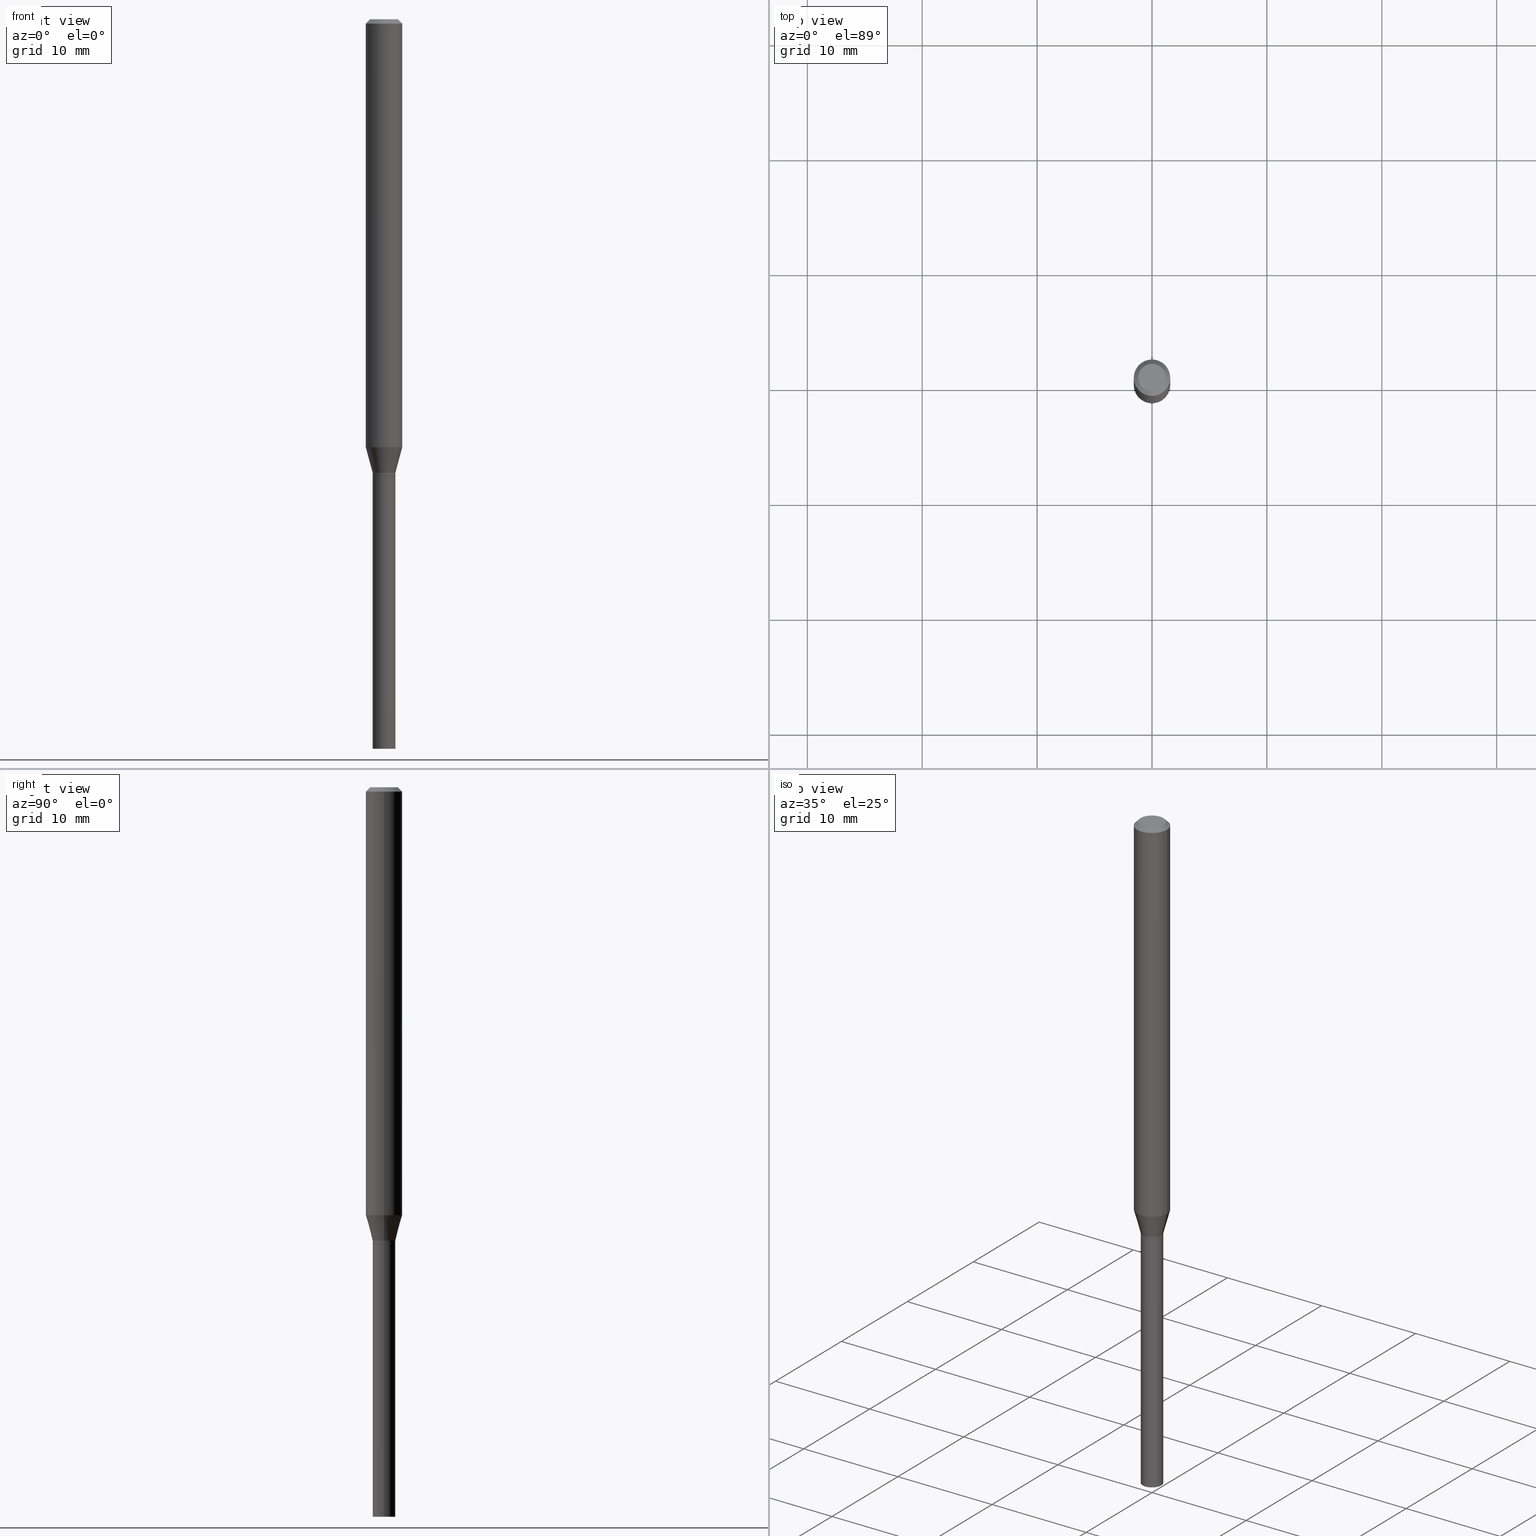
[diagram: canonical four-view strip — front | top / right | iso, engineering-drawing reading convention]
A machine part, canonical four-view strip (front | top / right | iso — engineering-drawing reading convention). The complete STEP part file that produces these views, byte-faithful:
ISO-10303-21;
HEADER;
FILE_DESCRIPTION (( 'STEP AP203' ),
    '1' );
FILE_NAME ('00655.STEP',
    '2024-03-19T22:21:24',
    ( '' ),
    ( '' ),
    'SwSTEP 2.0',
    'SolidWorks 2023',
    '' );
FILE_SCHEMA (( 'CONFIG_CONTROL_DESIGN' ));
ENDSEC;

DATA;
#1 = AXIS2_PLACEMENT_3D ( 'NONE', #177, #400, #214 ) ;
#2 = DATE_TIME_ROLE ( 'creation_date' ) ;
#3 = LINE ( 'NONE', #431, #44 ) ;
#4 = VERTEX_POINT ( 'NONE', #256 ) ;
#5 = CARTESIAN_POINT ( 'NONE',  ( -0.03899999999999963912, -5.148650333615810710E-15, -1.553999999999999826 ) ) ;
#6 = ORIENTED_EDGE ( 'NONE', *, *, #369, .T. ) ;
#7 = AXIS2_PLACEMENT_3D ( 'NONE', #466, #168, #139 ) ;
#8 = DIRECTION ( 'NONE',  ( 1.000000000000000000, -6.982962677686266711E-15, 4.876176775795935793E-29 ) ) ;
#9 = VERTEX_POINT ( 'NONE', #123 ) ;
#10 = CARTESIAN_POINT ( 'NONE',  ( 3.823490478470460975E-29, -5.458931073281258596E-15, -1.563500000000000112 ) ) ;
#11 = ORIENTED_EDGE ( 'NONE', *, *, #413, .T. ) ;
#12 = DIRECTION ( 'NONE',  ( -2.445468806185136597E-29, 3.491481338843145583E-15, 1.000000000000000000 ) ) ;
#13 = DIRECTION ( 'NONE',  ( -2.445468806185136597E-29, 3.491481338843145583E-15, 1.000000000000000000 ) ) ;
#14 = CC_DESIGN_APPROVAL ( #157, ( #235 ) ) ;
#15 = ORIENTED_EDGE ( 'NONE', *, *, #308, .F. ) ;
#16 = ORIENTED_EDGE ( 'NONE', *, *, #321, .F. ) ;
#17 = CARTESIAN_POINT ( 'NONE',  ( 0.000000000000000000, 0.000000000000000000, 0.000000000000000000 ) ) ;
#18 = ORIENTED_EDGE ( 'NONE', *, *, #96, .T. ) ;
#19 = CIRCLE ( 'NONE', #355, 0.03899999999999999994 ) ;
#20 = CIRCLE ( 'NONE', #438, 0.03899999999999999994 ) ;
#21 = DIRECTION ( 'NONE',  ( -2.445468806185136597E-29, 3.491481338843145583E-15, 1.000000000000000000 ) ) ;
#22 = APPLICATION_PROTOCOL_DEFINITION ( 'international standard', 'config_control_design', 1994, #347 ) ;
#23 = EDGE_CURVE ( 'NONE', #78, #51, #402, .T. ) ;
#24 = CARTESIAN_POINT ( 'NONE',  ( 0.03899999999999999994, -2.723355444297643682E-16, 1.901708942560414931E-30 ) ) ;
#25 =( NAMED_UNIT ( * ) SI_UNIT ( $, .STERADIAN. ) SOLID_ANGLE_UNIT ( ) );
#26 = FACE_OUTER_BOUND ( 'NONE', #118, .T. ) ;
#27 = CARTESIAN_POINT ( 'NONE',  ( 3.824713212873553776E-29, -5.460676813950680100E-15, -1.564000000000000057 ) ) ;
#28 = AXIS2_PLACEMENT_3D ( 'NONE', #63, #463, #202 ) ;
#29 = CARTESIAN_POINT ( 'NONE',  ( -0.06250000000000000000, 3.840629472727444916E-16, -0.01499999999999999944 ) ) ;
#30 = AXIS2_PLACEMENT_3D ( 'NONE', #10, #151, #287 ) ;
#31 = PRODUCT_DEFINITION_SHAPE ( 'NONE', 'NONE',  #235 ) ;
#32 = ADVANCED_FACE ( 'NONE', ( #183 ), #282, .T. ) ;
#33 = PERSON_AND_ORGANIZATION ( #237, #290 ) ;
#34 = PERSON_AND_ORGANIZATION_ROLE ( 'creator' ) ;
#35 = ORIENTED_EDGE ( 'NONE', *, *, #188, .T. ) ;
#36 = EDGE_CURVE ( 'NONE', #75, #220, #19, .T. ) ;
#37 = DIRECTION ( 'NONE',  ( -2.445468806185136597E-29, 3.491481338843145583E-15, 1.000000000000000000 ) ) ;
#38 = VECTOR ( 'NONE', #365, 39.37007874015748143 ) ;
#39 = CIRCLE ( 'NONE', #165, 0.06250000000000000000 ) ;
#40 = ORIENTED_EDGE ( 'NONE', *, *, #250, .F. ) ;
#41 = CARTESIAN_POINT ( 'NONE',  ( 0.000000000000000000, 0.000000000000000000, 0.000000000000000000 ) ) ;
#42 = EDGE_CURVE ( 'NONE', #155, #353, #424, .T. ) ;
#43 = AXIS2_PLACEMENT_3D ( 'NONE', #192, #265, #377 ) ;
#44 = VECTOR ( 'NONE', #110, 39.37007874015748854 ) ;
#45 = CC_DESIGN_SECURITY_CLASSIFICATION ( #385, ( #71 ) ) ;
#46 = CARTESIAN_POINT ( 'NONE',  ( -0.03899999999999999994, -6.817578413582832808E-15, -2.500000000000000000 ) ) ;
#47 = ORIENTED_EDGE ( 'NONE', *, *, #169, .F. ) ;
#48 = CARTESIAN_POINT ( 'NONE',  ( 0.03849999999999999256, -5.729520877041600327E-15, -1.563999999999999835 ) ) ;
#49 = ORIENTED_EDGE ( 'NONE', *, *, #264, .F. ) ;
#50 = ADVANCED_FACE ( 'NONE', ( #340 ), #234, .T. ) ;
#51 = VERTEX_POINT ( 'NONE', #130 ) ;
#52 = VECTOR ( 'NONE', #257, 39.37007874015748854 ) ;
#53 = ORIENTED_EDGE ( 'NONE', *, *, #386, .F. ) ;
#54 = ORIENTED_EDGE ( 'NONE', *, *, #23, .T. ) ;
#55 = CARTESIAN_POINT ( 'NONE',  ( 0.03849999999999999256, -5.729520877041600327E-15, -1.563999999999999835 ) ) ;
#56 = EDGE_CURVE ( 'NONE', #69, #9, #336, .T. ) ;
#57 = CLOSED_SHELL ( 'NONE', ( #284, #375, #222, #406, #133, #291, #272, #219, #446, #208, #32, #174 ) ) ;
#58 = DIRECTION ( 'NONE',  ( -2.445468806185136877E-29, 3.491481338843145188E-15, 1.000000000000000000 ) ) ;
#59 = CARTESIAN_POINT ( 'NONE',  ( 0.000000000000000000, 0.000000000000000000, 0.000000000000000000 ) ) ;
#60 = EDGE_CURVE ( 'NONE', #78, #248, #436, .T. ) ;
#61 = FACE_OUTER_BOUND ( 'NONE', #246, .T. ) ;
#62 = DIRECTION ( 'NONE',  ( -2.445468806185136597E-29, 3.491481338843145583E-15, 1.000000000000000000 ) ) ;
#63 = CARTESIAN_POINT ( 'NONE',  ( 3.824713212873553776E-29, -5.460676813950680100E-15, -1.564000000000000057 ) ) ;
#64 = LOCAL_TIME ( 18, 21, 24.00000000000000000, #310 ) ;
#65 = LINE ( 'NONE', #29, #230 ) ;
#66 = CALENDAR_DATE ( 2024, 19, 3 ) ;
#67 = EDGE_LOOP ( 'NONE', ( #405, #6, #279, #295 ) ) ;
#68 = DIRECTION ( 'NONE',  ( 2.445468806185136597E-29, -3.491481338843145583E-15, -1.000000000000000000 ) ) ;
#69 = VERTEX_POINT ( 'NONE', #55 ) ;
#70 = CARTESIAN_POINT ( 'NONE',  ( -0.06250000000000000000, 4.440892098500626162E-16, -3.074334431409316114E-30 ) ) ;
#71 = PRODUCT_DEFINITION_FORMATION_WITH_SPECIFIED_SOURCE ( 'ANY', '', #166, .NOT_KNOWN. ) ;
#72 = DATE_AND_TIME ( #66, #64 ) ;
#73 = VERTEX_POINT ( 'NONE', #198 ) ;
#74 = DIRECTION ( 'NONE',  ( -2.445468806185136877E-29, 3.491481338843145188E-15, 1.000000000000000000 ) ) ;
#75 = VERTEX_POINT ( 'NONE', #236 ) ;
#76 = LINE ( 'NONE', #5, #244 ) ;
#77 = CIRCLE ( 'NONE', #120, 0.06250000000000000000 ) ;
#78 = VERTEX_POINT ( 'NONE', #338 ) ;
#79 = AXIS2_PLACEMENT_3D ( 'NONE', #454, #371, #414 ) ;
#80 = DIRECTION ( 'NONE',  ( -2.445468806185136597E-29, 3.491481338843145583E-15, 1.000000000000000000 ) ) ;
#81 = CARTESIAN_POINT ( 'NONE',  ( 0.06250000000000000000, -4.811533449433679005E-16, -0.01499999999999999944 ) ) ;
#82 = CC_DESIGN_PERSON_AND_ORGANIZATION_ASSIGNMENT ( #33, #390, ( #385 ) ) ;
#83 = PLANE ( 'NONE',  #79 ) ;
#84 = ORIENTED_EDGE ( 'NONE', *, *, #315, .F. ) ;
#85 = EDGE_LOOP ( 'NONE', ( #404, #146 ) ) ;
#86 = CIRCLE ( 'NONE', #185, 0.03899999999999963912 ) ;
#87 = ORIENTED_EDGE ( 'NONE', *, *, #358, .T. ) ;
#88 = PERSON_AND_ORGANIZATION ( #237, #290 ) ;
#89 = EDGE_CURVE ( 'NONE', #220, #75, #392, .T. ) ;
#90 = FACE_OUTER_BOUND ( 'NONE', #189, .T. ) ;
#91 = LINE ( 'NONE', #164, #104 ) ;
#92 = AXIS2_PLACEMENT_3D ( 'NONE', #17, #156, #296 ) ;
#93 = DIRECTION ( 'NONE',  ( 2.438088387897960049E-29, -3.491481338843145188E-15, -1.000000000000000000 ) ) ;
#94 = DESIGN_CONTEXT ( 'detailed design', #347, 'design' ) ;
#95 = DIRECTION ( 'NONE',  ( -2.445468806185136597E-29, 3.491481338843145583E-15, 1.000000000000000000 ) ) ;
#96 = EDGE_CURVE ( 'NONE', #124, #155, #91, .T. ) ;
#97 = CARTESIAN_POINT ( 'NONE',  ( 6.113672015462842613E-29, -8.728703347107864943E-15, -2.500000000000000000 ) ) ;
#98 = CARTESIAN_POINT ( 'NONE',  ( 0.000000000000000000, 0.000000000000000000, 0.000000000000000000 ) ) ;
#99 = CALENDAR_DATE ( 2024, 19, 3 ) ;
#100 = FACE_OUTER_BOUND ( 'NONE', #447, .T. ) ;
#101 = DIRECTION ( 'NONE',  ( -2.445468806185136597E-29, 3.491481338843145583E-15, 1.000000000000000000 ) ) ;
#102 = APPROVAL_STATUS ( 'not_yet_approved' ) ;
#103 = VECTOR ( 'NONE', #167, 39.37007874015748143 ) ;
#104 = VECTOR ( 'NONE', #58, 39.37007874015748143 ) ;
#105 = AXIS2_PLACEMENT_3D ( 'NONE', #233, #462, #239 ) ;
#106 = ADVANCED_BREP_SHAPE_REPRESENTATION ( '00655', ( #122, #441, #92 ), #373 ) ;
#107 = CARTESIAN_POINT ( 'NONE',  ( 3.668203209277705088E-31, -5.237222008264718399E-17, -0.01499999999999999944 ) ) ;
#108 = EDGE_CURVE ( 'NONE', #73, #353, #199, .T. ) ;
#109 = SHAPE_DEFINITION_REPRESENTATION ( #31, #106 ) ;
#110 = DIRECTION ( 'NONE',  ( -0.7071067811869518049, 7.493145998871813553E-15, 0.7071067811861430075 ) ) ;
#111 = SECURITY_CLASSIFICATION_LEVEL ( 'unclassified' ) ;
#112 = DIRECTION ( 'NONE',  ( -2.445468806185136597E-29, 3.491481338843145583E-15, 1.000000000000000000 ) ) ;
#113 = AXIS2_PLACEMENT_3D ( 'NONE', #318, #12, #435 ) ;
#114 = EDGE_CURVE ( 'NONE', #4, #220, #229, .T. ) ;
#115 = CARTESIAN_POINT ( 'NONE',  ( 3.585783099736017642E-29, -5.119547935431576050E-15, -1.466296806022130417 ) ) ;
#116 = ORIENTED_EDGE ( 'NONE', *, *, #23, .F. ) ;
#117 = DIRECTION ( 'NONE',  ( -2.445468806185136597E-29, 3.491481338843145583E-15, 1.000000000000000000 ) ) ;
#118 = EDGE_LOOP ( 'NONE', ( #288, #18, #40, #224 ) ) ;
#119 = EDGE_CURVE ( 'NONE', #353, #286, #158, .T. ) ;
#120 = AXIS2_PLACEMENT_3D ( 'NONE', #138, #21, #303 ) ;
#121 = ORIENTED_EDGE ( 'NONE', *, *, #302, .F. ) ;
#122 = MANIFOLD_SOLID_BREP ( 'Body-Move/Copy2[1]', #298 ) ;
#123 = CARTESIAN_POINT ( 'NONE',  ( -0.03849999999999999256, -5.184468633508929690E-15, -1.563999999999999835 ) ) ;
#124 = VERTEX_POINT ( 'NONE', #304 ) ;
#125 = ORIENTED_EDGE ( 'NONE', *, *, #259, .T. ) ;
#126 = LINE ( 'NONE', #341, #337 ) ;
#127 = CIRCLE ( 'NONE', #448, 0.04749999999999999362 ) ;
#128 = CC_DESIGN_PERSON_AND_ORGANIZATION_ASSIGNMENT ( #313, #143, ( #235 ) ) ;
#129 = DIRECTION ( 'NONE',  ( 1.000000000000000000, -6.982962677686265922E-15, 4.876176775795935793E-29 ) ) ;
#130 = CARTESIAN_POINT ( 'NONE',  ( 0.06250000000000000000, -4.888073874380388472E-16, -0.01499999999999999944 ) ) ;
#131 = APPROVAL_ROLE ( '' ) ;
#132 = FACE_OUTER_BOUND ( 'NONE', #67, .T. ) ;
#133 = ADVANCED_FACE ( 'NONE', ( #459 ), #159, .T. ) ;
#134 = AXIS2_PLACEMENT_3D ( 'NONE', #328, #13, #292 ) ;
#135 = CONICAL_SURFACE ( 'NONE', #171, 0.06250000000000000000, 0.7853981633974427279 ) ;
#136 = DIRECTION ( 'NONE',  ( 1.000000000000000000, -6.982962677686266711E-15, 4.876176775795936353E-29 ) ) ;
#137 = PERSON_AND_ORGANIZATION ( #237, #290 ) ;
#138 = CARTESIAN_POINT ( 'NONE',  ( 3.585783099736017642E-29, -5.119547935431576050E-15, -1.466296806022130417 ) ) ;
#139 = DIRECTION ( 'NONE',  ( 1.000000000000000000, -6.982962677686266711E-15, 4.876176775795936353E-29 ) ) ;
#140 = VECTOR ( 'NONE', #350, 39.37007874015748143 ) ;
#141 = ADVANCED_FACE ( 'NONE', ( #90 ), #412, .T. ) ;
#142 = AXIS2_PLACEMENT_3D ( 'NONE', #457, #95, #232 ) ;
#143 = PERSON_AND_ORGANIZATION_ROLE ( 'creator' ) ;
#144 = ORIENTED_EDGE ( 'NONE', *, *, #403, .T. ) ;
#145 = DATE_AND_TIME ( #334, #209 ) ;
#146 = ORIENTED_EDGE ( 'NONE', *, *, #60, .T. ) ;
#147 = DIRECTION ( 'NONE',  ( 1.000000000000000000, -6.982962677686266711E-15, 0.000000000000000000 ) ) ;
#148 = ORIENTED_EDGE ( 'NONE', *, *, #36, .F. ) ;
#149 = DIRECTION ( 'NONE',  ( -2.445468806185136597E-29, 3.491481338843145583E-15, 1.000000000000000000 ) ) ;
#150 = ORIENTED_EDGE ( 'NONE', *, *, #452, .T. ) ;
#151 = DIRECTION ( 'NONE',  ( -2.445468806185136597E-29, 3.491481338843145583E-15, 1.000000000000000000 ) ) ;
#152 = EDGE_LOOP ( 'NONE', ( #116, #16, #396, #35 ) ) ;
#153 = ORIENTED_EDGE ( 'NONE', *, *, #89, .T. ) ;
#154 = EDGE_LOOP ( 'NONE', ( #121, #333, #258, #148 ) ) ;
#155 = VERTEX_POINT ( 'NONE', #417 ) ;
#156 = DIRECTION ( 'NONE',  ( 0.000000000000000000, 0.000000000000000000, 1.000000000000000000 ) ) ;
#157 = APPROVAL ( #458, 'UNSPECIFIED' ) ;
#158 = LINE ( 'NONE', #307, #297 ) ;
#159 = CONICAL_SURFACE ( 'NONE', #275, 0.03899999999999963912, 0.2617993877991506846 ) ;
#160 = VECTOR ( 'NONE', #325, 39.37007874015748143 ) ;
#161 = PERSON_AND_ORGANIZATION ( #237, #290 ) ;
#162 = CC_DESIGN_PERSON_AND_ORGANIZATION_ASSIGNMENT ( #432, #352, ( #71 ) ) ;
#163 = CARTESIAN_POINT ( 'NONE',  ( 0.03899999999999990974, -2.723355444297637765E-16, 1.901708942560410727E-30 ) ) ;
#164 = CARTESIAN_POINT ( 'NONE',  ( -0.03899999999999990974, 2.771116669464384311E-16, -1.918384685199408874E-30 ) ) ;
#165 = AXIS2_PLACEMENT_3D ( 'NONE', #253, #440, #147 ) ;
#166 = PRODUCT ( '00655', '00655', '', ( #191 ) ) ;
#167 = DIRECTION ( 'NONE',  ( -2.445468806185136877E-29, 3.491481338843145188E-15, 1.000000000000000000 ) ) ;
#168 = DIRECTION ( 'NONE',  ( -2.445468806185136597E-29, 3.491481338843145583E-15, 1.000000000000000000 ) ) ;
#169 = EDGE_CURVE ( 'NONE', #286, #430, #77, .T. ) ;
#170 = COORDINATED_UNIVERSAL_TIME_OFFSET ( 5, 0, .BEHIND. ) ;
#171 = AXIS2_PLACEMENT_3D ( 'NONE', #388, #349, #312 ) ;
#172 = DIRECTION ( 'NONE',  ( 1.000000000000000000, -6.982962677686283277E-15, 0.000000000000000000 ) ) ;
#173 = COORDINATED_UNIVERSAL_TIME_OFFSET ( 5, 0, .BEHIND. ) ;
#174 = ADVANCED_FACE ( 'NONE', ( #132 ), #273, .T. ) ;
#175 = APPROVAL_ROLE ( '' ) ;
#176 = ORIENTED_EDGE ( 'NONE', *, *, #119, .T. ) ;
#177 = CARTESIAN_POINT ( 'NONE',  ( 3.824713212873553216E-29, -5.460676813950679311E-15, -1.563999999999999835 ) ) ;
#178 = AXIS2_PLACEMENT_3D ( 'NONE', #41, #323, #8 ) ;
#179 = DIRECTION ( 'NONE',  ( 1.000000000000000000, -6.982962677686262766E-15, 0.000000000000000000 ) ) ;
#180 = ORIENTED_EDGE ( 'NONE', *, *, #203, .F. ) ;
#181 = CC_DESIGN_DATE_AND_TIME_ASSIGNMENT ( #211, #2, ( #235 ) ) ;
#182 = CYLINDRICAL_SURFACE ( 'NONE', #178, 0.06250000000000000000 ) ;
#183 = FACE_OUTER_BOUND ( 'NONE', #320, .T. ) ;
#184 = ORIENTED_EDGE ( 'NONE', *, *, #169, .T. ) ;
#185 = AXIS2_PLACEMENT_3D ( 'NONE', #418, #37, #342 ) ;
#186 = LOCAL_TIME ( 18, 21, 24.00000000000000000, #173 ) ;
#187 = DIMENSIONAL_EXPONENTS ( 1.000000000000000000, 0.000000000000000000, 0.000000000000000000, 0.000000000000000000, 0.000000000000000000, 0.000000000000000000, 0.000000000000000000 ) ;
#188 = EDGE_CURVE ( 'NONE', #215, #51, #330, .T. ) ;
#189 = EDGE_LOOP ( 'NONE', ( #125, #366, #207, #361 ) ) ;
#190 = ORIENTED_EDGE ( 'NONE', *, *, #56, .T. ) ;
#191 = MECHANICAL_CONTEXT ( 'NONE', #319, 'mechanical' ) ;
#192 = CARTESIAN_POINT ( 'NONE',  ( 3.800258524811702231E-29, -5.425762000562247662E-15, -1.553999999999999826 ) ) ;
#193 =( NAMED_UNIT ( * ) PLANE_ANGLE_UNIT ( ) SI_UNIT ( $, .RADIAN. ) );
#194 = CONICAL_SURFACE ( 'NONE', #113, 0.03899999999999963912, 0.2617993877991506846 ) ;
#195 = ADVANCED_FACE ( 'NONE', ( #343 ), #434, .F. ) ;
#196 = DIRECTION ( 'NONE',  ( 0.2588190451025219607, 1.565188264969617432E-15, 0.9659258262890679791 ) ) ;
#197 = DIRECTION ( 'NONE',  ( 1.000000000000000000, -6.982962677686266711E-15, 4.876176775795935793E-29 ) ) ;
#198 = CARTESIAN_POINT ( 'NONE',  ( 0.03900000000000019423, -5.731266617711024986E-15, -1.563500000000000112 ) ) ;
#199 = LINE ( 'NONE', #163, #140 ) ;
#200 = AXIS2_PLACEMENT_3D ( 'NONE', #443, #117, #249 ) ;
#201 = CYLINDRICAL_SURFACE ( 'NONE', #362, 0.06250000000000000000 ) ;
#202 = DIRECTION ( 'NONE',  ( 1.000000000000000000, -6.982962677686258033E-15, 0.000000000000000000 ) ) ;
#203 = EDGE_CURVE ( 'NONE', #248, #215, #65, .T. ) ;
#204 = DATE_AND_TIME ( #99, #394 ) ;
#205 = EDGE_LOOP ( 'NONE', ( #262, #428 ) ) ;
#206 = PERSON_AND_ORGANIZATION ( #237, #290 ) ;
#207 = ORIENTED_EDGE ( 'NONE', *, *, #89, .F. ) ;
#208 = ADVANCED_FACE ( 'NONE', ( #316 ), #306, .F. ) ;
#209 = LOCAL_TIME ( 18, 21, 24.00000000000000000, #305 ) ;
#210 = FACE_OUTER_BOUND ( 'NONE', #444, .T. ) ;
#211 = DATE_AND_TIME ( #387, #268 ) ;
#212 = DIRECTION ( 'NONE',  ( 1.000000000000000000, -6.982962677686267499E-15, 4.852736867747366768E-29 ) ) ;
#213 = ORIENTED_EDGE ( 'NONE', *, *, #369, .F. ) ;
#214 = DIRECTION ( 'NONE',  ( 1.000000000000000000, -6.982962677686271444E-15, 0.000000000000000000 ) ) ;
#215 = VERTEX_POINT ( 'NONE', #277 ) ;
#216 = CARTESIAN_POINT ( 'NONE',  ( -4.193002486944321875E-45, 5.986496290552430293E-31, 1.714600683655944577E-16 ) ) ;
#217 = AXIS2_PLACEMENT_3D ( 'NONE', #445, #149, #285 ) ;
#218 = EDGE_LOOP ( 'NONE', ( #153, #450 ) ) ;
#219 = ADVANCED_FACE ( 'NONE', ( #429 ), #135, .T. ) ;
#220 = VERTEX_POINT ( 'NONE', #421 ) ;
#221 = ORIENTED_EDGE ( 'NONE', *, *, #119, .F. ) ;
#222 = ADVANCED_FACE ( 'NONE', ( #100 ), #393, .T. ) ;
#223 = AXIS2_PLACEMENT_3D ( 'NONE', #419, #101, #346 ) ;
#224 = ORIENTED_EDGE ( 'NONE', *, *, #108, .F. ) ;
#225 = CIRCLE ( 'NONE', #30, 0.03900000000000019423 ) ;
#226 = ORIENTED_EDGE ( 'NONE', *, *, #308, .T. ) ;
#227 = PERSON_AND_ORGANIZATION_ROLE ( 'design_owner' ) ;
#228 = CARTESIAN_POINT ( 'NONE',  ( 3.824713212873553216E-29, -5.460676813950679311E-15, -1.563999999999999835 ) ) ;
#229 = LINE ( 'NONE', #24, #103 ) ;
#230 = VECTOR ( 'NONE', #269, 39.37007874015748143 ) ;
#231 = CARTESIAN_POINT ( 'NONE',  ( 3.316907271900976096E-16, 0.04749999999999999362, -8.011532941225217989E-17 ) ) ;
#232 = DIRECTION ( 'NONE',  ( 1.000000000000000000, -6.982962677686266711E-15, 0.000000000000000000 ) ) ;
#233 = CARTESIAN_POINT ( 'NONE',  ( 3.824713212873553776E-29, -5.460676813950680100E-15, -1.564000000000000057 ) ) ;
#234 = CYLINDRICAL_SURFACE ( 'NONE', #415, 0.03899999999999999994 ) ;
#235 = PRODUCT_DEFINITION ( 'UNKNOWN', '', #71, #94 ) ;
#236 = CARTESIAN_POINT ( 'NONE',  ( -0.03899999999999999994, -6.817578413582832808E-15, -1.564000000000000057 ) ) ;
#237 = PERSON ( 'UNSPECIFIED', 'UNSPECIFIED', 'UNSPECIFIED', ('UNSPECIFIED'), ('UNSPECIFIED'), ('UNSPECIFIED') ) ;
#238 = CIRCLE ( 'NONE', #322, 0.03899999999999999994 ) ;
#239 = DIRECTION ( 'NONE',  ( 1.000000000000000000, -6.982962677686265922E-15, 4.876176775795935793E-29 ) ) ;
#240 = CARTESIAN_POINT ( 'NONE',  ( -0.04749999999999999362, 3.578768372314213957E-16, 1.714600683655920665E-16 ) ) ;
#241 = EDGE_LOOP ( 'NONE', ( #184, #144, #326, #331 ) ) ;
#242 = CC_DESIGN_PERSON_AND_ORGANIZATION_ASSIGNMENT ( #88, #227, ( #166 ) ) ;
#243 = CARTESIAN_POINT ( 'NONE',  ( 0.000000000000000000, 0.000000000000000000, 0.000000000000000000 ) ) ;
#244 = VECTOR ( 'NONE', #245, 39.37007874015748143 ) ;
#245 = DIRECTION ( 'NONE',  ( -0.2588190451025219607, 5.211531920934553408E-15, 0.9659258262890679791 ) ) ;
#246 = EDGE_LOOP ( 'NONE', ( #453, #260, #150, #370 ) ) ;
#247 = DIRECTION ( 'NONE',  ( -2.445468806185136597E-29, 3.491481338843145583E-15, 1.000000000000000000 ) ) ;
#248 = VERTEX_POINT ( 'NONE', #240 ) ;
#249 = DIRECTION ( 'NONE',  ( 1.000000000000000000, -6.982962677686273021E-15, 0.000000000000000000 ) ) ;
#250 = EDGE_CURVE ( 'NONE', #353, #155, #86, .T. ) ;
#251 = ORIENTED_EDGE ( 'NONE', *, *, #358, .F. ) ;
#252 = AXIS2_PLACEMENT_3D ( 'NONE', #59, #374, #129 ) ;
#253 = CARTESIAN_POINT ( 'NONE',  ( 3.668203209277705088E-31, -5.237222008264718399E-17, -0.01499999999999999944 ) ) ;
#254 = AXIS2_PLACEMENT_3D ( 'NONE', #231, #93, #344 ) ;
#255 = CC_DESIGN_APPROVAL ( #437, ( #385 ) ) ;
#256 = CARTESIAN_POINT ( 'NONE',  ( 0.03899999999999999994, -9.001038891537628966E-15, -2.500000000000000000 ) ) ;
#257 = DIRECTION ( 'NONE',  ( 0.7071067811869518049, -2.468850131086492060E-15, 0.7071067811861430075 ) ) ;
#258 = ORIENTED_EDGE ( 'NONE', *, *, #114, .T. ) ;
#259 = EDGE_CURVE ( 'NONE', #4, #293, #238, .T. ) ;
#260 = ORIENTED_EDGE ( 'NONE', *, *, #386, .T. ) ;
#261 = PRODUCT_RELATED_PRODUCT_CATEGORY ( 'detail', '', ( #166 ) ) ;
#262 = ORIENTED_EDGE ( 'NONE', *, *, #56, .F. ) ;
#263 = CIRCLE ( 'NONE', #384, 0.06250000000000000000 ) ;
#264 = EDGE_CURVE ( 'NONE', #9, #124, #3, .T. ) ;
#265 = DIRECTION ( 'NONE',  ( -2.445468806185136597E-29, 3.491481338843145583E-15, 1.000000000000000000 ) ) ;
#266 = PLANE ( 'NONE',  #254 ) ;
#267 = DIRECTION ( 'NONE',  ( -2.445468806185136597E-29, 3.491481338843145583E-15, 1.000000000000000000 ) ) ;
#268 = LOCAL_TIME ( 18, 21, 24.00000000000000000, #170 ) ;
#269 = DIRECTION ( 'NONE',  ( -0.7071067811865435759, 2.468850131082215251E-15, -0.7071067811865514585 ) ) ;
#270 = DIRECTION ( 'NONE',  ( -2.445468806185136597E-29, 3.491481338843145583E-15, 1.000000000000000000 ) ) ;
#271 = APPROVAL_DATE_TIME ( #145, #157 ) ;
#272 = ADVANCED_FACE ( 'NONE', ( #61 ), #201, .T. ) ;
#273 = CYLINDRICAL_SURFACE ( 'NONE', #300, 0.03899999999999990974 ) ;
#274 = CARTESIAN_POINT ( 'NONE',  ( 0.06250000000000000000, -5.555983102786967719E-15, -1.466296806022130417 ) ) ;
#275 = AXIS2_PLACEMENT_3D ( 'NONE', #461, #270, #299 ) ;
#276 = CIRCLE ( 'NONE', #200, 0.03900000000000019423 ) ;
#277 = CARTESIAN_POINT ( 'NONE',  ( -0.06250000000000000000, -2.141870867907049540E-15, -0.01499999999999999944 ) ) ;
#278 = DATE_AND_TIME ( #383, #186 ) ;
#279 = ORIENTED_EDGE ( 'NONE', *, *, #108, .T. ) ;
#280 = PERSON_AND_ORGANIZATION ( #237, #290 ) ;
#281 = LINE ( 'NONE', #357, #160 ) ;
#282 = CONICAL_SURFACE ( 'NONE', #134, 0.03849999999999999256, 0.7853981633980202659 ) ;
#283 = DIRECTION ( 'NONE',  ( 1.000000000000000000, -6.982962677686283277E-15, 0.000000000000000000 ) ) ;
#284 = ADVANCED_FACE ( 'NONE', ( #26 ), #345, .T. ) ;
#285 = DIRECTION ( 'NONE',  ( 1.000000000000000000, -6.982962677686271444E-15, 0.000000000000000000 ) ) ;
#286 = VERTEX_POINT ( 'NONE', #274 ) ;
#287 = DIRECTION ( 'NONE',  ( 1.000000000000000000, -6.982962677686273021E-15, 0.000000000000000000 ) ) ;
#288 = ORIENTED_EDGE ( 'NONE', *, *, #423, .T. ) ;
#289 = LINE ( 'NONE', #48, #52 ) ;
#290 = ORGANIZATION ( 'UNSPECIFIED', 'UNSPECIFIED', '' ) ;
#291 = ADVANCED_FACE ( 'NONE', ( #210 ), #194, .T. ) ;
#292 = DIRECTION ( 'NONE',  ( 1.000000000000000000, -6.982962677686271444E-15, 0.000000000000000000 ) ) ;
#293 = VERTEX_POINT ( 'NONE', #46 ) ;
#294 = DIRECTION ( 'NONE',  ( 2.438088387897960049E-29, -3.491481338843145188E-15, -1.000000000000000000 ) ) ;
#295 = ORIENTED_EDGE ( 'NONE', *, *, #42, .F. ) ;
#296 = DIRECTION ( 'NONE',  ( 1.000000000000000000, 0.000000000000000000, 0.000000000000000000 ) ) ;
#297 = VECTOR ( 'NONE', #196, 39.37007874015748143 ) ;
#298 = CLOSED_SHELL ( 'NONE', ( #141, #433, #50, #195 ) ) ;
#299 = DIRECTION ( 'NONE',  ( 1.000000000000000000, -6.982962677686273810E-15, 0.000000000000000000 ) ) ;
#300 = AXIS2_PLACEMENT_3D ( 'NONE', #422, #267, #136 ) ;
#301 = DIRECTION ( 'NONE',  ( -2.445468806185136877E-29, 3.491481338843145188E-15, 1.000000000000000000 ) ) ;
#302 = EDGE_CURVE ( 'NONE', #293, #75, #281, .T. ) ;
#303 = DIRECTION ( 'NONE',  ( 1.000000000000000000, -6.982962677686262766E-15, 0.000000000000000000 ) ) ;
#304 = CARTESIAN_POINT ( 'NONE',  ( -0.03900000000000019423, -5.181819406334818489E-15, -1.563500000000000112 ) ) ;
#305 = COORDINATED_UNIVERSAL_TIME_OFFSET ( 5, 0, .BEHIND. ) ;
#306 = PLANE ( 'NONE',  #105 ) ;
#307 = CARTESIAN_POINT ( 'NONE',  ( 0.03899999999999963912, -5.698097544992010107E-15, -1.553999999999999826 ) ) ;
#308 = EDGE_CURVE ( 'NONE', #155, #430, #76, .T. ) ;
#309 = DIRECTION ( 'NONE',  ( -2.445468806185136597E-29, 3.491481338843145583E-15, 1.000000000000000000 ) ) ;
#310 = COORDINATED_UNIVERSAL_TIME_OFFSET ( 5, 0, .BEHIND. ) ;
#311 = APPROVAL_DATE_TIME ( #204, #437 ) ;
#312 = DIRECTION ( 'NONE',  ( -1.000000000000000000, 6.982962677686266711E-15, 0.000000000000000000 ) ) ;
#313 = PERSON_AND_ORGANIZATION ( #237, #290 ) ;
#314 = AXIS2_PLACEMENT_3D ( 'NONE', #228, #62, #382 ) ;
#315 = EDGE_CURVE ( 'NONE', #293, #4, #20, .T. ) ;
#316 = FACE_OUTER_BOUND ( 'NONE', #205, .T. ) ;
#317 = ORIENTED_EDGE ( 'NONE', *, *, #264, .T. ) ;
#318 = CARTESIAN_POINT ( 'NONE',  ( 3.800258524811702231E-29, -5.425762000562247662E-15, -1.553999999999999826 ) ) ;
#319 = APPLICATION_CONTEXT ( 'configuration controlled 3d designs of mechanical parts and assemblies' ) ;
#320 = EDGE_LOOP ( 'NONE', ( #49, #11, #87, #213 ) ) ;
#321 = EDGE_CURVE ( 'NONE', #248, #78, #127, .T. ) ;
#322 = AXIS2_PLACEMENT_3D ( 'NONE', #97, #379, #172 ) ;
#323 = DIRECTION ( 'NONE',  ( -2.445468806185136597E-29, 3.491481338843145583E-15, 1.000000000000000000 ) ) ;
#324 = CC_DESIGN_APPROVAL ( #465, ( #71 ) ) ;
#325 = DIRECTION ( 'NONE',  ( -2.445468806185136877E-29, 3.491481338843145188E-15, 1.000000000000000000 ) ) ;
#326 = ORIENTED_EDGE ( 'NONE', *, *, #335, .F. ) ;
#327 = CARTESIAN_POINT ( 'NONE',  ( 0.03899999999999963912, -5.698097544992010107E-15, -1.553999999999999826 ) ) ;
#328 = CARTESIAN_POINT ( 'NONE',  ( 3.824713212873553216E-29, -5.460676813950679311E-15, -1.563999999999999835 ) ) ;
#329 = DIRECTION ( 'NONE',  ( -1.000000000000000000, 6.982962677686265922E-15, -4.876176775795935793E-29 ) ) ;
#330 = CIRCLE ( 'NONE', #142, 0.06250000000000000000 ) ;
#331 = ORIENTED_EDGE ( 'NONE', *, *, #452, .F. ) ;
#332 = ORIENTED_EDGE ( 'NONE', *, *, #423, .F. ) ;
#333 = ORIENTED_EDGE ( 'NONE', *, *, #315, .T. ) ;
#334 = CALENDAR_DATE ( 2024, 19, 3 ) ;
#335 = EDGE_CURVE ( 'NONE', #51, #215, #39, .T. ) ;
#336 = CIRCLE ( 'NONE', #314, 0.03849999999999999256 ) ;
#337 = VECTOR ( 'NONE', #301, 39.37007874015748143 ) ;
#338 = CARTESIAN_POINT ( 'NONE',  ( 0.04749999999999999362, -4.035134999187575172E-16, 1.714600683655970215E-16 ) ) ;
#339 = APPLICATION_PROTOCOL_DEFINITION ( 'international standard', 'config_control_design', 1994, #319 ) ;
#340 = FACE_OUTER_BOUND ( 'NONE', #154, .T. ) ;
#341 = CARTESIAN_POINT ( 'NONE',  ( 0.06250000000000000000, -4.364351673553916694E-16, 3.047610484872459871E-30 ) ) ;
#342 = DIRECTION ( 'NONE',  ( 1.000000000000000000, -6.982962677686273810E-15, 0.000000000000000000 ) ) ;
#343 = FACE_OUTER_BOUND ( 'NONE', #218, .T. ) ;
#344 = DIRECTION ( 'NONE',  ( -1.000000000000000000, 6.982962677686265922E-15, -4.876176775795935793E-29 ) ) ;
#345 = CYLINDRICAL_SURFACE ( 'NONE', #7, 0.03899999999999990974 ) ;
#346 = DIRECTION ( 'NONE',  ( 1.000000000000000000, -6.982962677686267499E-15, 4.852736867747366768E-29 ) ) ;
#347 = APPLICATION_CONTEXT ( 'configuration controlled 3d designs of mechanical parts and assemblies' ) ;
#348 = CARTESIAN_POINT ( 'NONE',  ( 2.723355444298025786E-16, 0.03899999999999453210, -1.564000000000000057 ) ) ;
#349 = DIRECTION ( 'NONE',  ( 2.445468806185136597E-29, -3.491481338843145583E-15, -1.000000000000000000 ) ) ;
#350 = DIRECTION ( 'NONE',  ( -2.445468806185136877E-29, 3.491481338843145188E-15, 1.000000000000000000 ) ) ;
#351 = APPROVAL_DATE_TIME ( #278, #465 ) ;
#352 = PERSON_AND_ORGANIZATION_ROLE ( 'design_supplier' ) ;
#353 = VERTEX_POINT ( 'NONE', #327 ) ;
#354 = CC_DESIGN_PERSON_AND_ORGANIZATION_ASSIGNMENT ( #280, #34, ( #71 ) ) ;
#355 = AXIS2_PLACEMENT_3D ( 'NONE', #27, #309, #372 ) ;
#356 = APPROVAL_ROLE ( '' ) ;
#357 = CARTESIAN_POINT ( 'NONE',  ( -0.03899999999999999994, 2.771116669464390721E-16, -1.918384685199413078E-30 ) ) ;
#358 = EDGE_CURVE ( 'NONE', #69, #73, #289, .T. ) ;
#359 = EDGE_LOOP ( 'NONE', ( #391, #226, #47, #221 ) ) ;
#360 = FACE_OUTER_BOUND ( 'NONE', #241, .T. ) ;
#361 = ORIENTED_EDGE ( 'NONE', *, *, #114, .F. ) ;
#362 = AXIS2_PLACEMENT_3D ( 'NONE', #243, #389, #197 ) ;
#363 = FACE_OUTER_BOUND ( 'NONE', #399, .T. ) ;
#364 = EDGE_LOOP ( 'NONE', ( #190, #317, #332, #251 ) ) ;
#365 = DIRECTION ( 'NONE',  ( 0.7071067811865435759, -7.319954787623241846E-15, -0.7071067811865514585 ) ) ;
#366 = ORIENTED_EDGE ( 'NONE', *, *, #302, .T. ) ;
#367 = AXIS2_PLACEMENT_3D ( 'NONE', #348, #294, #329 ) ;
#368 = ORIENTED_EDGE ( 'NONE', *, *, #60, .F. ) ;
#369 = EDGE_CURVE ( 'NONE', #124, #73, #225, .T. ) ;
#370 = ORIENTED_EDGE ( 'NONE', *, *, #188, .F. ) ;
#371 = DIRECTION ( 'NONE',  ( -2.438088387897960049E-29, 3.491481338843145188E-15, 1.000000000000000000 ) ) ;
#372 = DIRECTION ( 'NONE',  ( 1.000000000000000000, -6.982962677686258033E-15, 0.000000000000000000 ) ) ;
#373 =( GEOMETRIC_REPRESENTATION_CONTEXT ( 3 ) GLOBAL_UNCERTAINTY_ASSIGNED_CONTEXT ( ( #401 ) ) GLOBAL_UNIT_ASSIGNED_CONTEXT ( ( #411, #193, #25 ) ) REPRESENTATION_CONTEXT ( 'NONE', 'WORKASPACE' ) );
#374 = DIRECTION ( 'NONE',  ( -2.445468806185136597E-29, 3.491481338843145583E-15, 1.000000000000000000 ) ) ;
#375 = ADVANCED_FACE ( 'NONE', ( #449 ), #425, .T. ) ;
#376 = FACE_OUTER_BOUND ( 'NONE', #85, .T. ) ;
#377 = DIRECTION ( 'NONE',  ( 1.000000000000000000, -6.982962677686273810E-15, 0.000000000000000000 ) ) ;
#378 = LENGTH_MEASURE_WITH_UNIT ( LENGTH_MEASURE( 0.02539999999999999897 ), #456 );
#379 = DIRECTION ( 'NONE',  ( -2.445468806185136597E-29, 3.491481338843145583E-15, 1.000000000000000000 ) ) ;
#380 = DIRECTION ( 'NONE',  ( -2.445468806185136597E-29, 3.491481338843145583E-15, 1.000000000000000000 ) ) ;
#381 = DIRECTION ( 'NONE',  ( -1.000000000000000000, 6.982962677686266711E-15, 0.000000000000000000 ) ) ;
#382 = DIRECTION ( 'NONE',  ( 1.000000000000000000, -6.982962677686271444E-15, 0.000000000000000000 ) ) ;
#383 = CALENDAR_DATE ( 2024, 19, 3 ) ;
#384 = AXIS2_PLACEMENT_3D ( 'NONE', #115, #247, #179 ) ;
#385 = SECURITY_CLASSIFICATION ( '', '', #111 ) ;
#386 = EDGE_CURVE ( 'NONE', #430, #286, #263, .T. ) ;
#387 = CALENDAR_DATE ( 2024, 19, 3 ) ;
#388 = CARTESIAN_POINT ( 'NONE',  ( 3.668203209277705088E-31, -5.237222008264718399E-17, -0.01499999999999999944 ) ) ;
#389 = DIRECTION ( 'NONE',  ( -2.445468806185136597E-29, 3.491481338843145583E-15, 1.000000000000000000 ) ) ;
#390 = PERSON_AND_ORGANIZATION_ROLE ( 'classification_officer' ) ;
#391 = ORIENTED_EDGE ( 'NONE', *, *, #250, .T. ) ;
#392 = CIRCLE ( 'NONE', #28, 0.03899999999999999994 ) ;
#393 = CONICAL_SURFACE ( 'NONE', #455, 0.06250000000000000000, 0.7853981633974427279 ) ;
#394 = LOCAL_TIME ( 18, 21, 24.00000000000000000, #420 ) ;
#395 = CARTESIAN_POINT ( 'NONE',  ( 6.113672015462842613E-29, -8.728703347107864943E-15, -2.500000000000000000 ) ) ;
#396 = ORIENTED_EDGE ( 'NONE', *, *, #203, .T. ) ;
#397 = LINE ( 'NONE', #70, #460 ) ;
#398 = CARTESIAN_POINT ( 'NONE',  ( -0.06250000000000000000, -4.675458725581512645E-15, -1.466296806022130417 ) ) ;
#399 = EDGE_LOOP ( 'NONE', ( #451, #84 ) ) ;
#400 = DIRECTION ( 'NONE',  ( -2.445468806185136597E-29, 3.491481338843145583E-15, 1.000000000000000000 ) ) ;
#401 = UNCERTAINTY_MEASURE_WITH_UNIT (LENGTH_MEASURE( 1.000000000000000082E-05 ), #411, 'distance_accuracy_value', 'NONE');
#402 = LINE ( 'NONE', #81, #38 ) ;
#403 = EDGE_CURVE ( 'NONE', #430, #215, #397, .T. ) ;
#404 = ORIENTED_EDGE ( 'NONE', *, *, #321, .T. ) ;
#405 = ORIENTED_EDGE ( 'NONE', *, *, #96, .F. ) ;
#406 = ADVANCED_FACE ( 'NONE', ( #360 ), #182, .T. ) ;
#407 = CIRCLE ( 'NONE', #217, 0.03849999999999999256 ) ;
#408 = ORIENTED_EDGE ( 'NONE', *, *, #42, .T. ) ;
#409 = CC_DESIGN_DATE_AND_TIME_ASSIGNMENT ( #72, #464, ( #385 ) ) ;
#410 = DIRECTION ( 'NONE',  ( 1.000000000000000000, -6.982962677686265922E-15, 4.876176775795935793E-29 ) ) ;
#411 =( CONVERSION_BASED_UNIT ( 'INCH', #378 ) LENGTH_UNIT ( ) NAMED_UNIT ( #187 ) );
#412 = CYLINDRICAL_SURFACE ( 'NONE', #252, 0.03899999999999999994 ) ;
#413 = EDGE_CURVE ( 'NONE', #9, #69, #407, .T. ) ;
#414 = DIRECTION ( 'NONE',  ( 1.000000000000000000, -6.982962677686265922E-15, 4.876176775795935793E-29 ) ) ;
#415 = AXIS2_PLACEMENT_3D ( 'NONE', #98, #380, #410 ) ;
#416 = APPROVAL_PERSON_ORGANIZATION ( #161, #157, #131 ) ;
#417 = CARTESIAN_POINT ( 'NONE',  ( -0.03899999999999963912, -4.912054529598662861E-15, -1.553999999999999826 ) ) ;
#418 = CARTESIAN_POINT ( 'NONE',  ( 3.800258524811702231E-29, -5.425762000562247662E-15, -1.553999999999999826 ) ) ;
#419 = CARTESIAN_POINT ( 'NONE',  ( -4.193002486944321875E-45, 5.986496290552430293E-31, 1.714600683655944577E-16 ) ) ;
#420 = COORDINATED_UNIVERSAL_TIME_OFFSET ( 5, 0, .BEHIND. ) ;
#421 = CARTESIAN_POINT ( 'NONE',  ( 0.03899999999999999994, -5.733012358380444123E-15, -1.564000000000000057 ) ) ;
#422 = CARTESIAN_POINT ( 'NONE',  ( 0.000000000000000000, 0.000000000000000000, 0.000000000000000000 ) ) ;
#423 = EDGE_CURVE ( 'NONE', #73, #124, #276, .T. ) ;
#424 = CIRCLE ( 'NONE', #43, 0.03899999999999963912 ) ;
#425 = CONICAL_SURFACE ( 'NONE', #1, 0.03849999999999999256, 0.7853981633980202659 ) ;
#426 = APPROVAL_STATUS ( 'not_yet_approved' ) ;
#427 = APPROVAL_PERSON_ORGANIZATION ( #206, #437, #356 ) ;
#428 = ORIENTED_EDGE ( 'NONE', *, *, #413, .F. ) ;
#429 = FACE_OUTER_BOUND ( 'NONE', #152, .T. ) ;
#430 = VERTEX_POINT ( 'NONE', #398 ) ;
#431 = CARTESIAN_POINT ( 'NONE',  ( -0.03849999999999999256, -5.187117860683040891E-15, -1.563999999999999835 ) ) ;
#432 = PERSON_AND_ORGANIZATION ( #237, #290 ) ;
#433 = ADVANCED_FACE ( 'NONE', ( #363 ), #83, .F. ) ;
#434 = PLANE ( 'NONE',  #367 ) ;
#435 = DIRECTION ( 'NONE',  ( 1.000000000000000000, -6.982962677686273810E-15, 0.000000000000000000 ) ) ;
#436 = CIRCLE ( 'NONE', #223, 0.04749999999999999362 ) ;
#437 = APPROVAL ( #426, 'UNSPECIFIED' ) ;
#438 = AXIS2_PLACEMENT_3D ( 'NONE', #395, #112, #283 ) ;
#439 = APPROVAL_PERSON_ORGANIZATION ( #137, #465, #175 ) ;
#440 = DIRECTION ( 'NONE',  ( -2.445468806185136597E-29, 3.491481338843145583E-15, 1.000000000000000000 ) ) ;
#441 = MANIFOLD_SOLID_BREP ( 'Body-Move/Copy2[2]', #57 ) ;
#442 = ORIENTED_EDGE ( 'NONE', *, *, #335, .T. ) ;
#443 = CARTESIAN_POINT ( 'NONE',  ( 3.823490478470460975E-29, -5.458931073281258596E-15, -1.563500000000000112 ) ) ;
#444 = EDGE_LOOP ( 'NONE', ( #15, #408, #176, #53 ) ) ;
#445 = CARTESIAN_POINT ( 'NONE',  ( 3.824713212873553216E-29, -5.460676813950679311E-15, -1.563999999999999835 ) ) ;
#446 = ADVANCED_FACE ( 'NONE', ( #376 ), #266, .F. ) ;
#447 = EDGE_LOOP ( 'NONE', ( #368, #54, #442, #180 ) ) ;
#448 = AXIS2_PLACEMENT_3D ( 'NONE', #216, #80, #212 ) ;
#449 = FACE_OUTER_BOUND ( 'NONE', #364, .T. ) ;
#450 = ORIENTED_EDGE ( 'NONE', *, *, #36, .T. ) ;
#451 = ORIENTED_EDGE ( 'NONE', *, *, #259, .F. ) ;
#452 = EDGE_CURVE ( 'NONE', #286, #51, #126, .T. ) ;
#453 = ORIENTED_EDGE ( 'NONE', *, *, #403, .F. ) ;
#454 = CARTESIAN_POINT ( 'NONE',  ( 6.198122052593289668E-29, -8.607766087339451973E-15, -2.500000000000000000 ) ) ;
#455 = AXIS2_PLACEMENT_3D ( 'NONE', #107, #68, #381 ) ;
#456 =( LENGTH_UNIT ( ) NAMED_UNIT ( * ) SI_UNIT ( $, .METRE. ) );
#457 = CARTESIAN_POINT ( 'NONE',  ( 3.668203209277705088E-31, -5.237222008264718399E-17, -0.01499999999999999944 ) ) ;
#458 = APPROVAL_STATUS ( 'not_yet_approved' ) ;
#459 = FACE_OUTER_BOUND ( 'NONE', #359, .T. ) ;
#460 = VECTOR ( 'NONE', #74, 39.37007874015748143 ) ;
#461 = CARTESIAN_POINT ( 'NONE',  ( 3.800258524811702231E-29, -5.425762000562247662E-15, -1.553999999999999826 ) ) ;
#462 = DIRECTION ( 'NONE',  ( -2.438088387897960049E-29, 3.491481338843145188E-15, 1.000000000000000000 ) ) ;
#463 = DIRECTION ( 'NONE',  ( -2.445468806185136597E-29, 3.491481338843145583E-15, 1.000000000000000000 ) ) ;
#464 = DATE_TIME_ROLE ( 'classification_date' ) ;
#465 = APPROVAL ( #102, 'UNSPECIFIED' ) ;
#466 = CARTESIAN_POINT ( 'NONE',  ( 0.000000000000000000, 0.000000000000000000, 0.000000000000000000 ) ) ;
ENDSEC;
END-ISO-10303-21;
